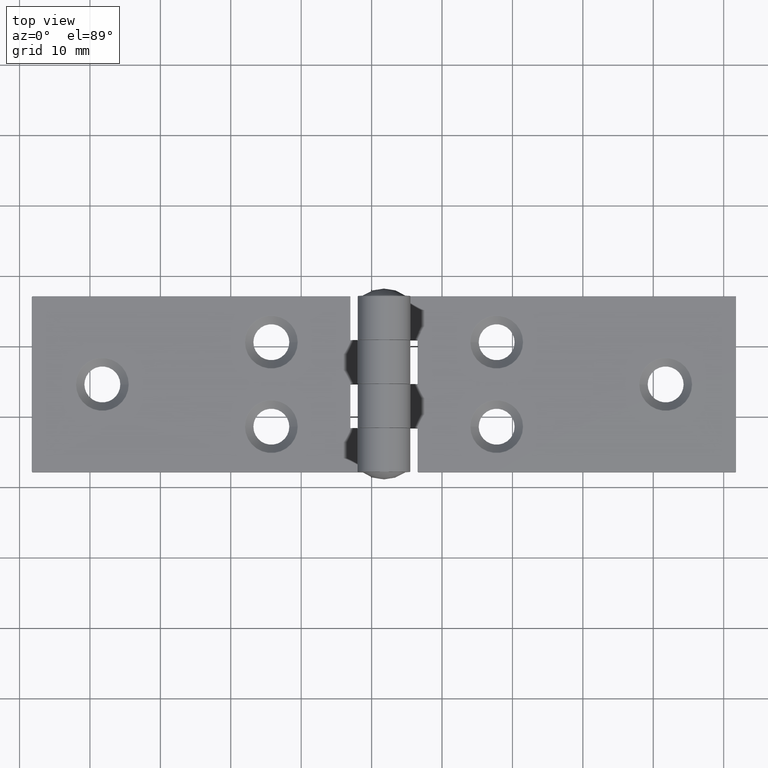
[diagram: clean part render]
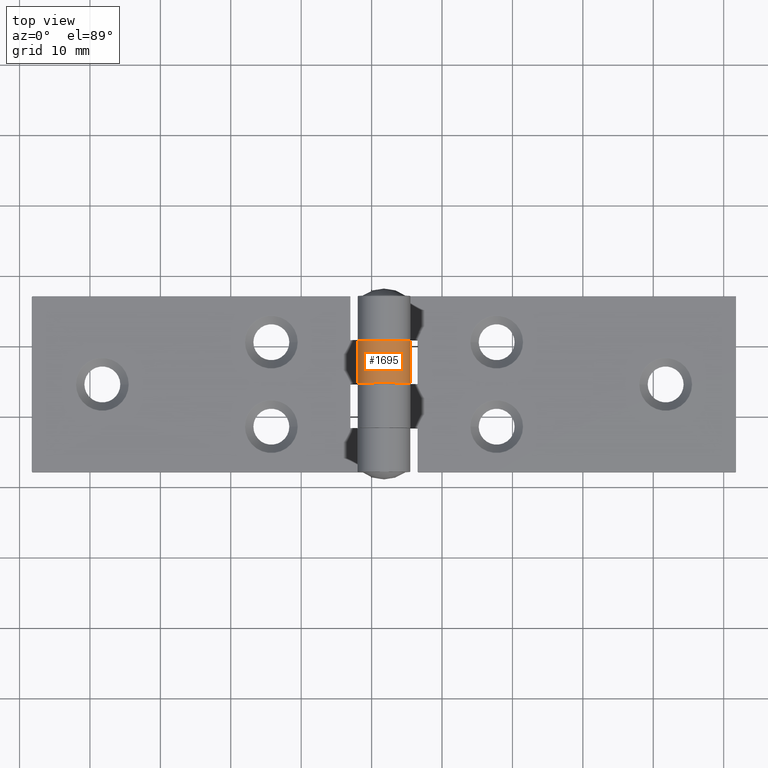
[diagram: same view with one face highlighted and labeled with its STEP entity id]
A machine part, top view. The second image highlights one B-rep face of the part: STEP entity #1695.
In plain terms, the highlighted cylindrical surface (edge-blend (fillet) strip) has radius 3.75 mm, axis along (-0, -1, -0).
Its self-contained STEP definition (entity closure, byte-faithful):
#213 = DIRECTION ( 'NONE',  ( 0.000000000000000000, 0.000000000000000000, 1.000000000000000000 ) ) ;
#320 = VERTEX_POINT ( 'NONE', #1595 ) ;
#370 = ORIENTED_EDGE ( 'NONE', *, *, #1139, .T. ) ;
#413 = VERTEX_POINT ( 'NONE', #2224 ) ;
#414 = VERTEX_POINT ( 'NONE', #3355 ) ;
#425 = CIRCLE ( 'NONE', #1544, 3.749999999999999112 ) ;
#592 = DIRECTION ( 'NONE',  ( 0.000000000000000000, 0.000000000000000000, 1.000000000000000000 ) ) ;
#783 = EDGE_CURVE ( 'NONE', #414, #320, #425, .T. ) ;
#851 = EDGE_CURVE ( 'NONE', #1916, #413, #2482, .T. ) ;
#1132 = ORIENTED_EDGE ( 'NONE', *, *, #851, .T. ) ;
#1139 = EDGE_CURVE ( 'NONE', #320, #1916, #2015, .T. ) ;
#1333 = CARTESIAN_POINT ( 'NONE',  ( 50.00000000000000000, 0.09999999999999939493, 3.750000000000000000 ) ) ;
#1544 = AXIS2_PLACEMENT_3D ( 'NONE', #2460, #2858, #213 ) ;
#1595 = CARTESIAN_POINT ( 'NONE',  ( 47.09492849496405142, 6.150000000000000355, 1.378700872806610134 ) ) ;
#1695 = ADVANCED_FACE ( 'NONE', ( #3654 ), #3240, .T. ) ;
#1793 = DIRECTION ( 'NONE',  ( -0.000000000000000000, -1.000000000000000000, -0.000000000000000000 ) ) ;
#1916 = VERTEX_POINT ( 'NONE', #1962 ) ;
#1962 = CARTESIAN_POINT ( 'NONE',  ( 47.09492849496405142, 0.09999999999999936717, 1.378700872806610134 ) ) ;
#2015 = LINE ( 'NONE', #4093, #2828 ) ;
#2124 = AXIS2_PLACEMENT_3D ( 'NONE', #1333, #3199, #592 ) ;
#2218 = CARTESIAN_POINT ( 'NONE',  ( 50.00000000000000000, 12.50000000000000000, 0.000000000000000000 ) ) ;
#2224 = CARTESIAN_POINT ( 'NONE',  ( 50.00000000000000000, 0.09999999999999939493, 0.000000000000000000 ) ) ;
#2460 = CARTESIAN_POINT ( 'NONE',  ( 50.00000000000000000, 6.150000000000000355, 3.750000000000000000 ) ) ;
#2469 = EDGE_CURVE ( 'NONE', #414, #413, #4364, .T. ) ;
#2482 = CIRCLE ( 'NONE', #2124, 3.749999999999999112 ) ;
#2625 = DIRECTION ( 'NONE',  ( -0.000000000000000000, -1.000000000000000000, -0.000000000000000000 ) ) ;
#2828 = VECTOR ( 'NONE', #2625, 1000.000000000000000 ) ;
#2858 = DIRECTION ( 'NONE',  ( -0.000000000000000000, -1.000000000000000000, -0.000000000000000000 ) ) ;
#3199 = DIRECTION ( 'NONE',  ( 0.000000000000000000, 1.000000000000000000, 0.000000000000000000 ) ) ;
#3240 = CYLINDRICAL_SURFACE ( 'NONE', #3813, 3.749999999999999112 ) ;
#3346 = VECTOR ( 'NONE', #3366, 1000.000000000000000 ) ;
#3355 = CARTESIAN_POINT ( 'NONE',  ( 50.00000000000000000, 6.150000000000000355, 0.000000000000000000 ) ) ;
#3366 = DIRECTION ( 'NONE',  ( -0.000000000000000000, -1.000000000000000000, -0.000000000000000000 ) ) ;
#3654 = FACE_OUTER_BOUND ( 'NONE', #4528, .T. ) ;
#3813 = AXIS2_PLACEMENT_3D ( 'NONE', #4087, #1793, #4036 ) ;
#3826 = ORIENTED_EDGE ( 'NONE', *, *, #2469, .F. ) ;
#4016 = ORIENTED_EDGE ( 'NONE', *, *, #783, .T. ) ;
#4036 = DIRECTION ( 'NONE',  ( 0.000000000000000000, 0.000000000000000000, -1.000000000000000000 ) ) ;
#4087 = CARTESIAN_POINT ( 'NONE',  ( 50.00000000000000000, 12.50000000000000000, 3.750000000000000000 ) ) ;
#4093 = CARTESIAN_POINT ( 'NONE',  ( 47.09492849496405142, 12.50000000000000000, 1.378700872806609690 ) ) ;
#4364 = LINE ( 'NONE', #2218, #3346 ) ;
#4528 = EDGE_LOOP ( 'NONE', ( #370, #1132, #3826, #4016 ) ) ;